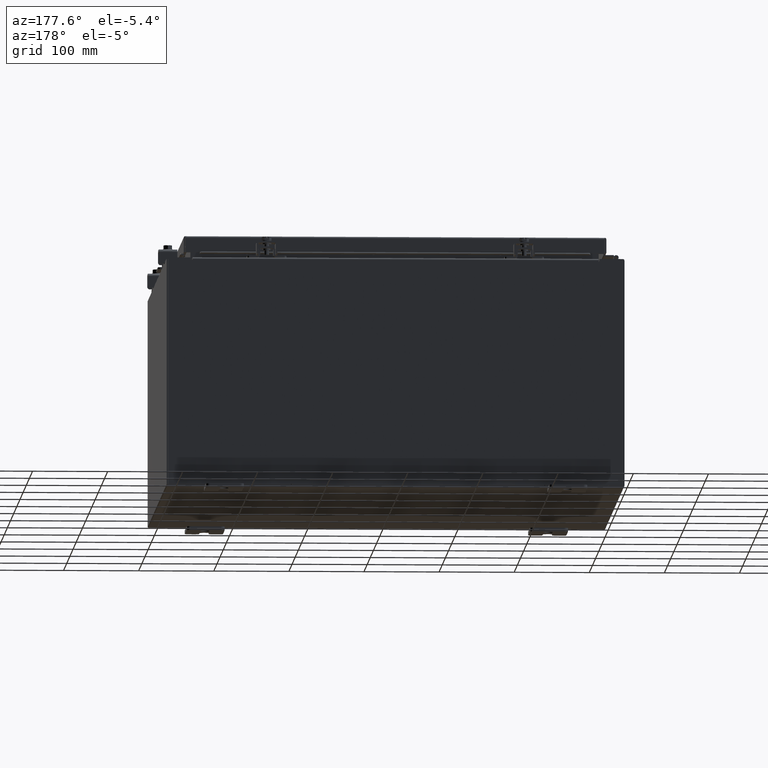
[diagram: clean part render]
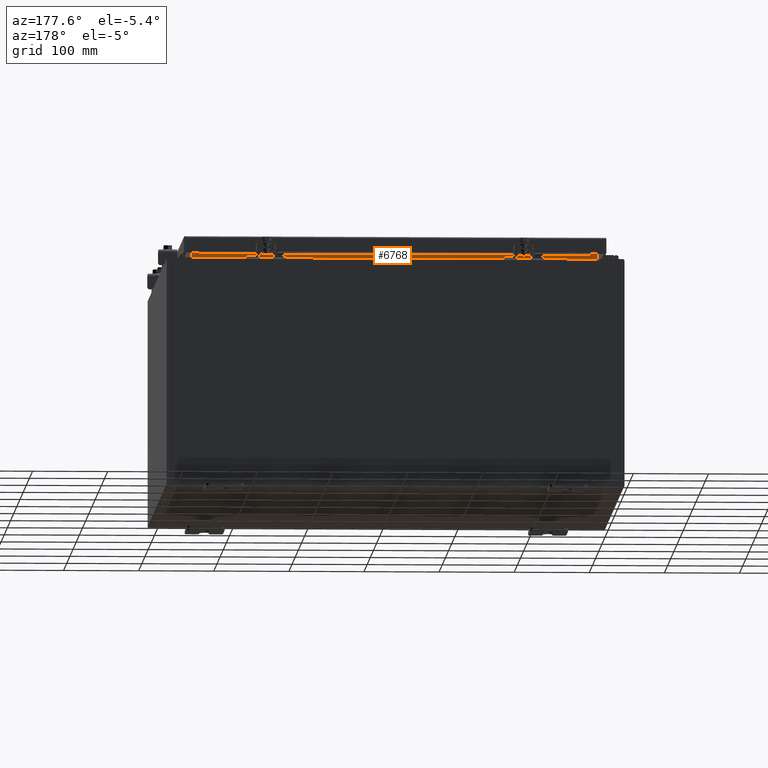
[diagram: same view with one face highlighted and labeled with its STEP entity id]
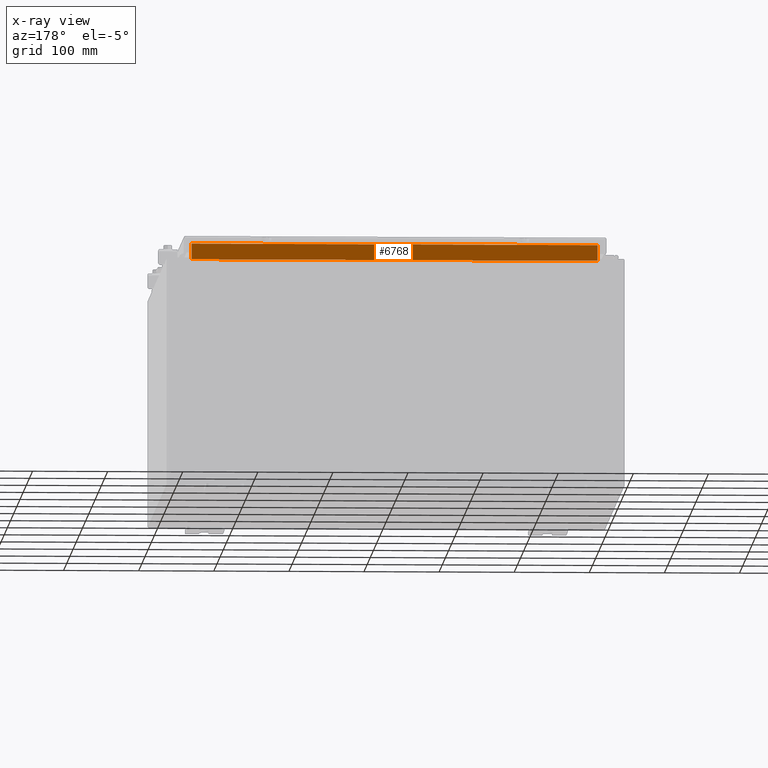
[diagram: x-ray of the same camera — body ghosted, the highlighted face saturated]
A machine part, auxiliary view. The second image highlights one B-rep face of the part: STEP entity #6768.
The next image is the same camera in x-ray: the body ghosted, the highlighted face saturated — about 0% of this face is hidden behind the body in this view.
In plain terms, the highlighted planar face has unit normal (-0, 1, 0).
Its self-contained STEP definition (entity closure, byte-faithful):
#1578 = LINE ( 'NONE', #18610, #27361 ) ;
#2285 = ORIENTED_EDGE ( 'NONE', *, *, #4233, .F. ) ;
#2976 = DIRECTION ( 'NONE',  ( -9.098806308417904000E-032, 1.000000000000000000, 8.857174949738224200E-016 ) ) ;
#3663 = ORIENTED_EDGE ( 'NONE', *, *, #27104, .F. ) ;
#4233 = EDGE_CURVE ( 'NONE', #6252, #22149, #10034, .T. ) ;
#5208 = DIRECTION ( 'NONE',  ( -1.000000000000000000, -0.0000000000000000000, -0.0000000000000000000 ) ) ;
#6252 = VERTEX_POINT ( 'NONE', #6526 ) ;
#6526 = CARTESIAN_POINT ( 'NONE',  ( 10.63720000000000400, -1.300299999999999800, 6.013000000000005200 ) ) ;
#6768 = ADVANCED_FACE ( 'NONE', ( #23611 ), #10416, .T. ) ;
#8718 = DIRECTION ( 'NONE',  ( -0.0000000000000000000, 8.857174949738214300E-016, -1.000000000000000000 ) ) ;
#9053 = CARTESIAN_POINT ( 'NONE',  ( -10.63719999999998800, -1.300300000000000900, 6.837600000000007200 ) ) ;
#9367 = VECTOR ( 'NONE', #26772, 39.37007874015748100 ) ;
#9390 = CARTESIAN_POINT ( 'NONE',  ( 1.183117784283575500E-031, -1.300299999999994700, -1.151698458714456500E-015 ) ) ;
#10034 = LINE ( 'NONE', #23237, #29218 ) ;
#10416 = PLANE ( 'NONE',  #10777 ) ;
#10777 = AXIS2_PLACEMENT_3D ( 'NONE', #9390, #2976, #15239 ) ;
#11265 = VERTEX_POINT ( 'NONE', #26256 ) ;
#12705 = LINE ( 'NONE', #20144, #31959 ) ;
#15239 = DIRECTION ( 'NONE',  ( 0.0000000000000000000, -8.857174949738224200E-016, 1.000000000000000000 ) ) ;
#15974 = EDGE_CURVE ( 'NONE', #11265, #6252, #21832, .T. ) ;
#17108 = ORIENTED_EDGE ( 'NONE', *, *, #15974, .F. ) ;
#18610 = CARTESIAN_POINT ( 'NONE',  ( -10.63720000000000200, -1.300299999999999800, 6.000000000000003600 ) ) ;
#20106 = CARTESIAN_POINT ( 'NONE',  ( 10.63720000000000200, -1.300300000000000700, 6.837600000000007200 ) ) ;
#20144 = CARTESIAN_POINT ( 'NONE',  ( 10.63719999999999600, -1.300300000000000900, 6.837600000000007200 ) ) ;
#21832 = LINE ( 'NONE', #31874, #9367 ) ;
#22149 = VERTEX_POINT ( 'NONE', #20106 ) ;
#22697 = ORIENTED_EDGE ( 'NONE', *, *, #23565, .F. ) ;
#23237 = CARTESIAN_POINT ( 'NONE',  ( 10.63720000000000200, -1.300300000000000700, 6.925300000000007100 ) ) ;
#23565 = EDGE_CURVE ( 'NONE', #29246, #11265, #1578, .T. ) ;
#23611 = FACE_OUTER_BOUND ( 'NONE', #24186, .T. ) ;
#24186 = EDGE_LOOP ( 'NONE', ( #22697, #3663, #2285, #17108 ) ) ;
#24286 = DIRECTION ( 'NONE',  ( -0.0000000000000000000, -8.857174949738224200E-016, 1.000000000000000000 ) ) ;
#26256 = CARTESIAN_POINT ( 'NONE',  ( -10.63720000000000400, -1.300299999999999800, 6.013000000000005200 ) ) ;
#26772 = DIRECTION ( 'NONE',  ( 1.000000000000000000, 1.027280861002618300E-016, 1.027280861002618300E-016 ) ) ;
#27104 = EDGE_CURVE ( 'NONE', #22149, #29246, #12705, .T. ) ;
#27361 = VECTOR ( 'NONE', #8718, 39.37007874015748100 ) ;
#29218 = VECTOR ( 'NONE', #24286, 39.37007874015748100 ) ;
#29246 = VERTEX_POINT ( 'NONE', #9053 ) ;
#31874 = CARTESIAN_POINT ( 'NONE',  ( -10.63720000000000200, -1.300299999999999800, 6.013000000000003500 ) ) ;
#31959 = VECTOR ( 'NONE', #5208, 39.37007874015748100 ) ;